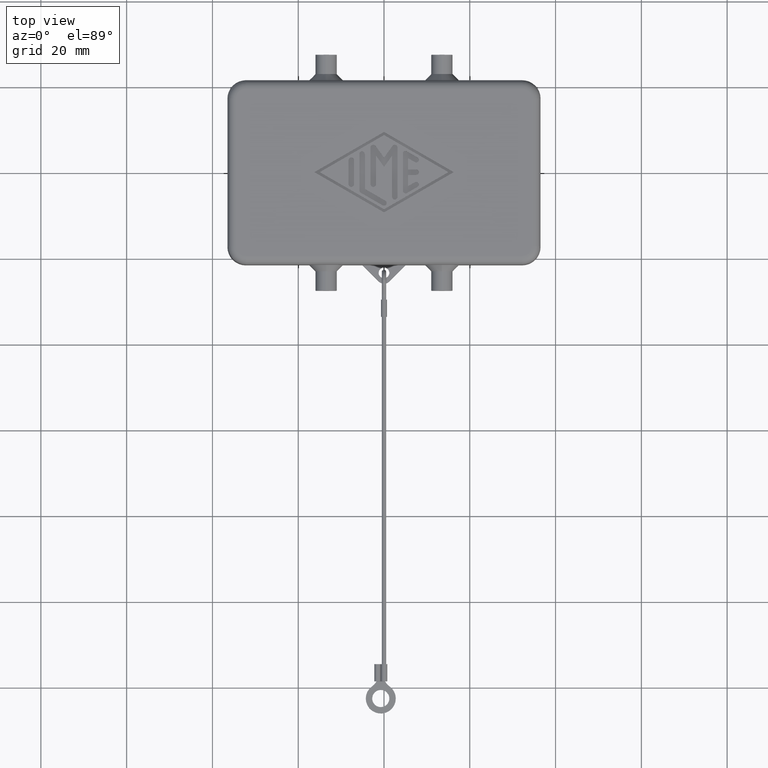
[diagram: clean part render]
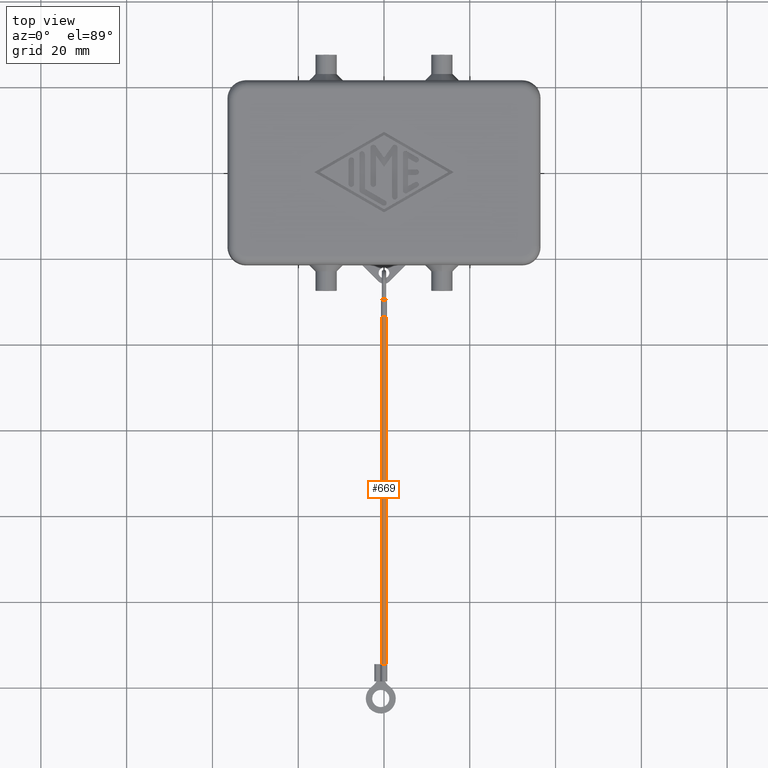
[diagram: same view with one face highlighted and labeled with its STEP entity id]
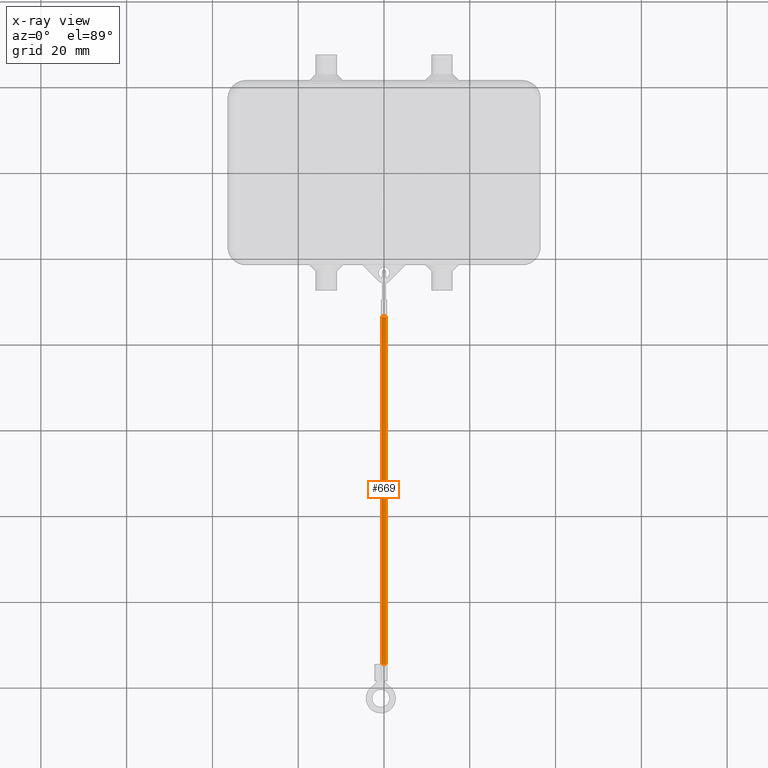
[diagram: x-ray of the same camera — body ghosted, the highlighted face saturated]
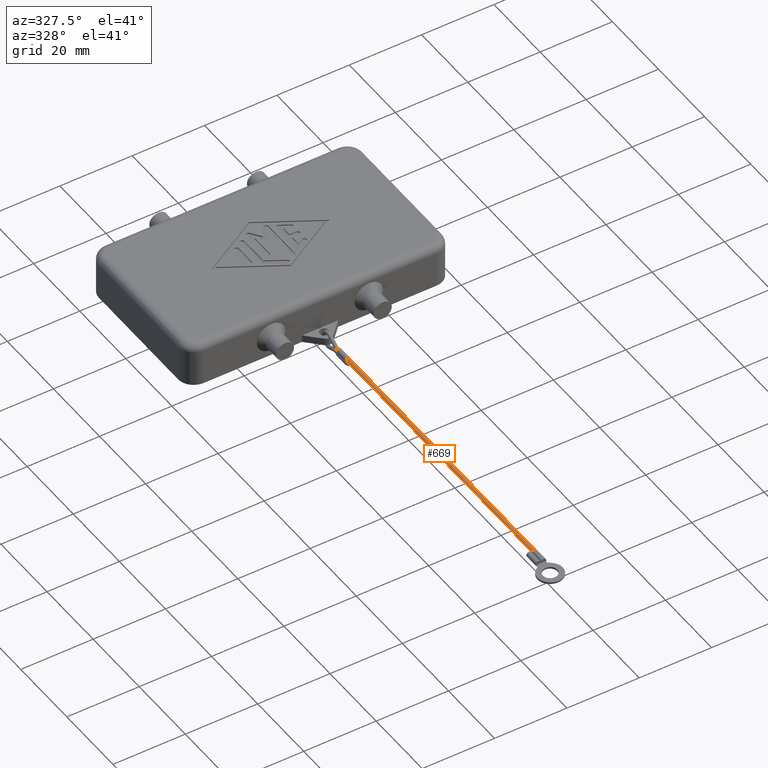
[diagram: same view with one face highlighted and labeled with its STEP entity id]
A machine part, top view. The second image highlights one B-rep face of the part: STEP entity #669.
The next image is the same camera in x-ray: the body ghosted, the highlighted face saturated — about 0% of this face is hidden behind the body in this view.
A second angle (auxiliary view) of the same face is appended — the face is thin or edge-on in the first view.
In plain terms, the highlighted cylindrical surface (edge-blend (fillet) strip) has radius 0.5 mm, axis along (0, 1, 0).
Its self-contained STEP definition (entity closure, byte-faithful):
#628=CARTESIAN_POINT('',(0.0,-118.500000000000000,1.0));
#629=DIRECTION('',(0.0,1.0,0.0));
#630=DIRECTION('',(-1.0,0.0,0.0));
#631=AXIS2_PLACEMENT_3D('',#628,#629,#630);
#632=CYLINDRICAL_SURFACE('',#631,0.500000000000000);
#633=CARTESIAN_POINT('',(-0.500000000000000,-114.500000000000000,1.0));
#634=VERTEX_POINT('',#633);
#635=CARTESIAN_POINT('',(-0.500000000000000,-33.500000000000000,1.0));
#636=VERTEX_POINT('',#635);
#637=CARTESIAN_POINT('',(-0.500000000000000,-114.500000000000000,1.0));
#638=DIRECTION('',(0.0,1.0,0.0));
#639=VECTOR('',#638,81.0);
#640=LINE('',#637,#639);
#641=EDGE_CURVE('',#634,#636,#640,.T.);
#642=ORIENTED_EDGE('',*,*,#641,.F.);
#643=CARTESIAN_POINT('',(0.500000000000000,-114.500000000000000,1.0));
#644=VERTEX_POINT('',#643);
#645=CARTESIAN_POINT('',(0.0,-114.500000000000000,1.0));
#646=DIRECTION('',(0.0,1.0,0.0));
#647=DIRECTION('',(-1.0,0.0,0.0));
#648=AXIS2_PLACEMENT_3D('',#645,#646,#647);
#649=CIRCLE('',#648,0.500000000000000);
#650=EDGE_CURVE('',#634,#644,#649,.T.);
#651=ORIENTED_EDGE('',*,*,#650,.T.);
#652=CARTESIAN_POINT('',(0.500000000000000,-33.500000000000000,1.0));
#653=VERTEX_POINT('',#652);
#654=CARTESIAN_POINT('',(0.500000000000000,-33.500000000000000,1.0));
#655=DIRECTION('',(0.0,-1.0,0.0));
#656=VECTOR('',#655,81.0);
#657=LINE('',#654,#656);
#658=EDGE_CURVE('',#653,#644,#657,.T.);
#659=ORIENTED_EDGE('',*,*,#658,.F.);
#660=CARTESIAN_POINT('',(0.0,-33.500000000000000,1.0));
#661=DIRECTION('',(0.0,-1.0,0.0));
#662=DIRECTION('',(-1.0,0.0,0.0));
#663=AXIS2_PLACEMENT_3D('',#660,#661,#662);
#664=CIRCLE('',#663,0.500000000000000);
#665=EDGE_CURVE('',#653,#636,#664,.T.);
#666=ORIENTED_EDGE('',*,*,#665,.T.);
#667=EDGE_LOOP('',(#642,#651,#659,#666));
#668=FACE_OUTER_BOUND('',#667,.T.);
#669=ADVANCED_FACE('',(#668),#632,.T.);